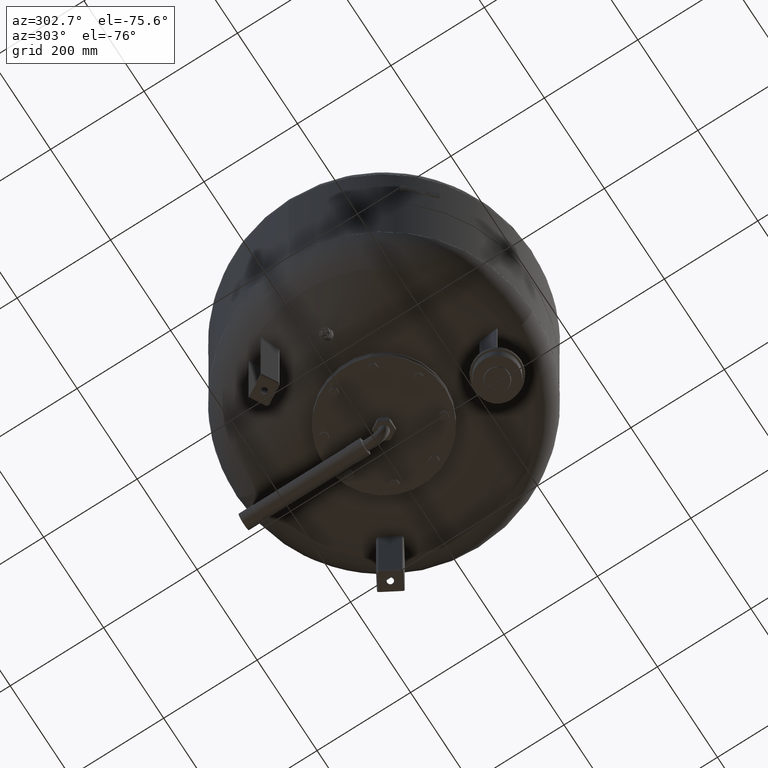
[diagram: clean part render]
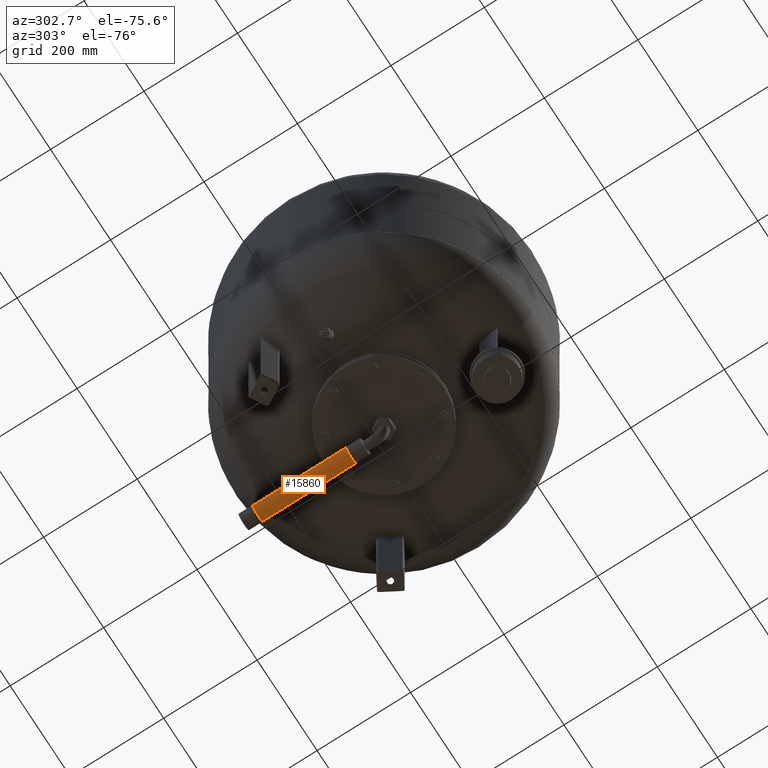
[diagram: same view with one face highlighted and labeled with its STEP entity id]
A machine part, auxiliary view. The second image highlights one B-rep face of the part: STEP entity #15860.
In plain terms, the highlighted cylindrical surface (edge-blend (fillet) strip) has radius 16.85 mm, axis along (0, -1, -0).
Its self-contained STEP definition (entity closure, byte-faithful):
#15790=CARTESIAN_POINT('',(-16.849999999999991,69.999999999999943,114.999999999999960));
#15791=VERTEX_POINT('',#15790);
#15792=CARTESIAN_POINT('',(-16.849999999999991,269.999999999999940,114.999999999999990));
#15793=VERTEX_POINT('',#15792);
#15794=CARTESIAN_POINT('',(-16.849999999999991,69.999999999999943,114.999999999999960));
#15795=DIRECTION('',(0.0,1.0,0.0));
#15796=VECTOR('',#15795,200.0);
#15797=LINE('',#15794,#15796);
#15798=EDGE_CURVE('',#15791,#15793,#15797,.T.);
#15800=CARTESIAN_POINT('',(16.850000000000012,69.999999999999943,114.999999999999940));
#15801=VERTEX_POINT('',#15800);
#15809=CARTESIAN_POINT('',(16.850000000000012,269.999999999999940,114.999999999999990));
#15810=VERTEX_POINT('',#15809);
#15811=CARTESIAN_POINT('',(16.850000000000012,69.999999999999943,114.999999999999940));
#15812=DIRECTION('',(0.0,1.0,0.0));
#15813=VECTOR('',#15812,200.0);
#15814=LINE('',#15811,#15813);
#15815=EDGE_CURVE('',#15801,#15810,#15814,.T.);
#15832=CARTESIAN_POINT('',(1.086893E-014,269.999999999999940,114.999999999999990));
#15833=DIRECTION('',(0.0,1.0,0.0));
#15834=DIRECTION('',(-1.0,0.0,0.0));
#15835=AXIS2_PLACEMENT_3D('',#15832,#15833,#15834);
#15836=CIRCLE('',#15835,16.850000000000001);
#15837=EDGE_CURVE('',#15810,#15793,#15836,.T.);
#15843=CARTESIAN_POINT('',(1.086893E-014,319.999999999999940,115.0));
#15844=DIRECTION('',(0.0,-1.0,-1.836970E-016));
#15845=DIRECTION('',(-1.0,0.0,0.0));
#15846=AXIS2_PLACEMENT_3D('',#15843,#15844,#15845);
#15847=CYLINDRICAL_SURFACE('',#15846,16.850000000000001);
#15848=ORIENTED_EDGE('',*,*,#15798,.T.);
#15849=ORIENTED_EDGE('',*,*,#15837,.F.);
#15850=ORIENTED_EDGE('',*,*,#15815,.F.);
#15851=CARTESIAN_POINT('',(1.086893E-014,69.999999999999943,114.999999999999940));
#15852=DIRECTION('',(0.0,1.0,0.0));
#15853=DIRECTION('',(-1.0,0.0,0.0));
#15854=AXIS2_PLACEMENT_3D('',#15851,#15852,#15853);
#15855=CIRCLE('',#15854,16.850000000000001);
#15856=EDGE_CURVE('',#15801,#15791,#15855,.T.);
#15857=ORIENTED_EDGE('',*,*,#15856,.T.);
#15858=EDGE_LOOP('',(#15848,#15849,#15850,#15857));
#15859=FACE_OUTER_BOUND('',#15858,.T.);
#15860=ADVANCED_FACE('',(#15859),#15847,.T.);